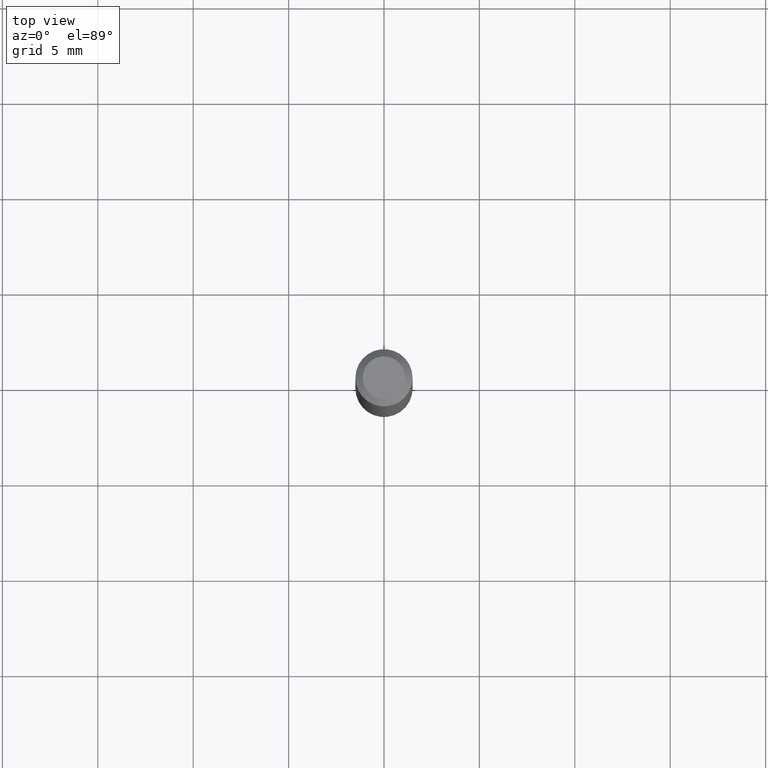
[diagram: clean part render]
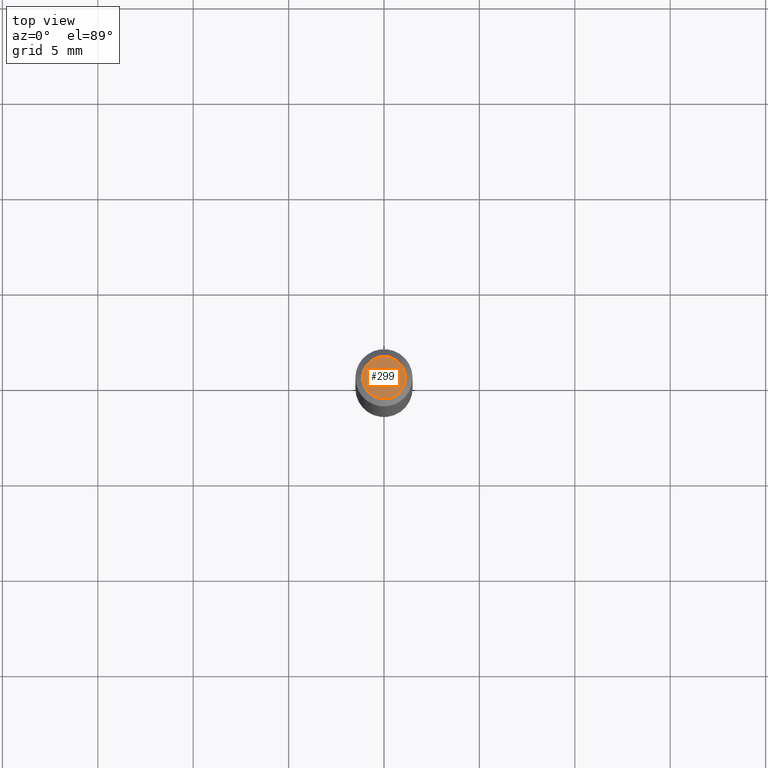
[diagram: same view with one face highlighted and labeled with its STEP entity id]
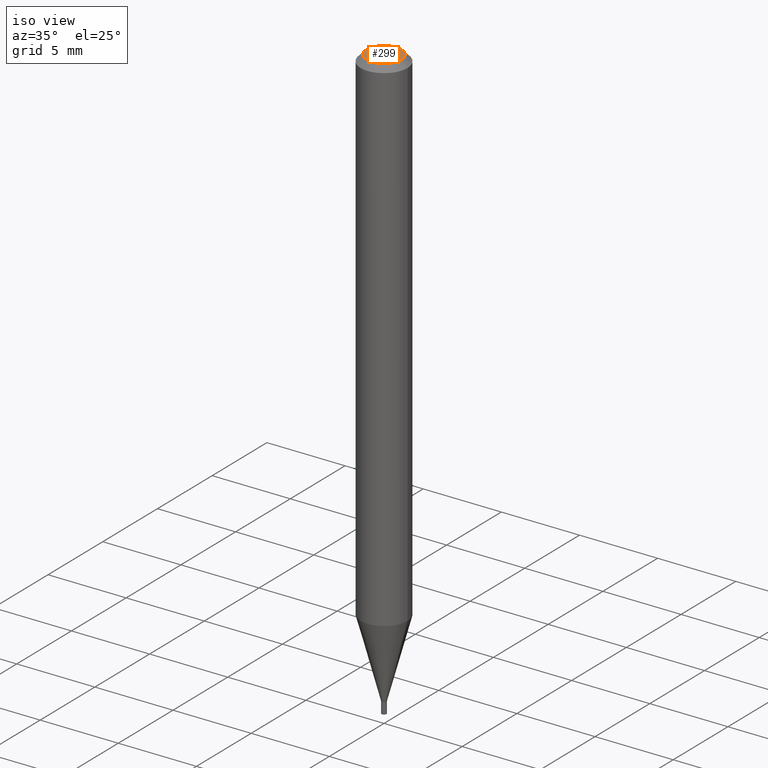
[diagram: same view with one face highlighted and labeled with its STEP entity id]
A machine part, top view. The second image highlights one B-rep face of the part: STEP entity #299.
A second angle (iso view) of the same face is appended — the face is thin or edge-on in the first view.
In plain terms, the highlighted planar face has unit normal (0, -0, -1).
Its self-contained STEP definition (entity closure, byte-faithful):
#16 = CARTESIAN_POINT ( 'NONE',  ( 3.075995059520799729E-16, 0.04404999999999999888, 2.027928670396002547E-16 ) ) ;
#43 = ORIENTED_EDGE ( 'NONE', *, *, #273, .T. ) ;
#50 = FACE_OUTER_BOUND ( 'NONE', #95, .T. ) ;
#56 = EDGE_CURVE ( 'NONE', #104, #427, #451, .T. ) ;
#90 = CARTESIAN_POINT ( 'NONE',  ( -1.744072257528158594E-44, 2.490072956707589401E-30, 7.131852400312816162E-16 ) ) ;
#95 = EDGE_LOOP ( 'NONE', ( #457, #43 ) ) ;
#100 = DIRECTION ( 'NONE',  ( -1.000000000000000000, 6.982962677686265922E-15, -4.876176775795935793E-29 ) ) ;
#104 = VERTEX_POINT ( 'NONE', #180 ) ;
#126 = AXIS2_PLACEMENT_3D ( 'NONE', #90, #163, #197 ) ;
#155 = CARTESIAN_POINT ( 'NONE',  ( 0.04404999999999999888, -3.798447818264447753E-16, 7.131852400312840814E-16 ) ) ;
#156 = CIRCLE ( 'NONE', #126, 0.04404999999999999888 ) ;
#163 = DIRECTION ( 'NONE',  ( -2.445468806185136597E-29, 3.491481338843145583E-15, 1.000000000000000000 ) ) ;
#173 = DIRECTION ( 'NONE',  ( 2.438088387897960049E-29, -3.491481338843145188E-15, -1.000000000000000000 ) ) ;
#180 = CARTESIAN_POINT ( 'NONE',  ( -0.04404999999999999888, 3.337856159934046958E-16, 7.131852400312794468E-16 ) ) ;
#197 = DIRECTION ( 'NONE',  ( 1.000000000000000000, -6.982962677686265922E-15, 4.957392940945096353E-29 ) ) ;
#202 = PLANE ( 'NONE',  #335 ) ;
#273 = EDGE_CURVE ( 'NONE', #427, #104, #156, .T. ) ;
#275 = CARTESIAN_POINT ( 'NONE',  ( -1.744072257528158594E-44, 2.490072956707589401E-30, 7.131852400312816162E-16 ) ) ;
#299 = ADVANCED_FACE ( 'NONE', ( #50 ), #202, .F. ) ;
#308 = DIRECTION ( 'NONE',  ( -2.445468806185136597E-29, 3.491481338843145583E-15, 1.000000000000000000 ) ) ;
#335 = AXIS2_PLACEMENT_3D ( 'NONE', #16, #173, #100 ) ;
#347 = AXIS2_PLACEMENT_3D ( 'NONE', #275, #308, #377 ) ;
#377 = DIRECTION ( 'NONE',  ( 1.000000000000000000, -6.982962677686265922E-15, 4.957392940945096353E-29 ) ) ;
#427 = VERTEX_POINT ( 'NONE', #155 ) ;
#451 = CIRCLE ( 'NONE', #347, 0.04404999999999999888 ) ;
#457 = ORIENTED_EDGE ( 'NONE', *, *, #56, .T. ) ;